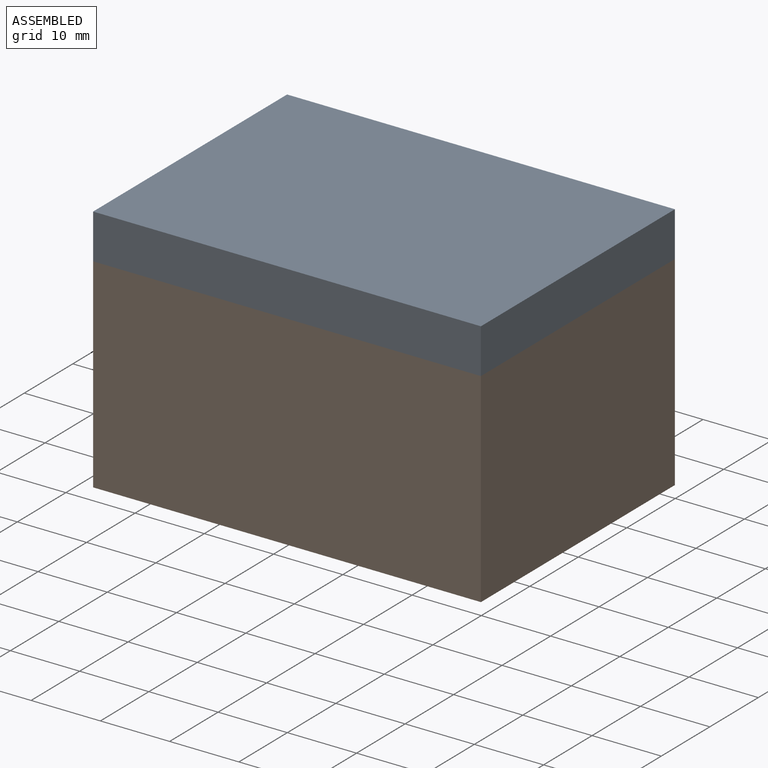
[diagram: assembled view]
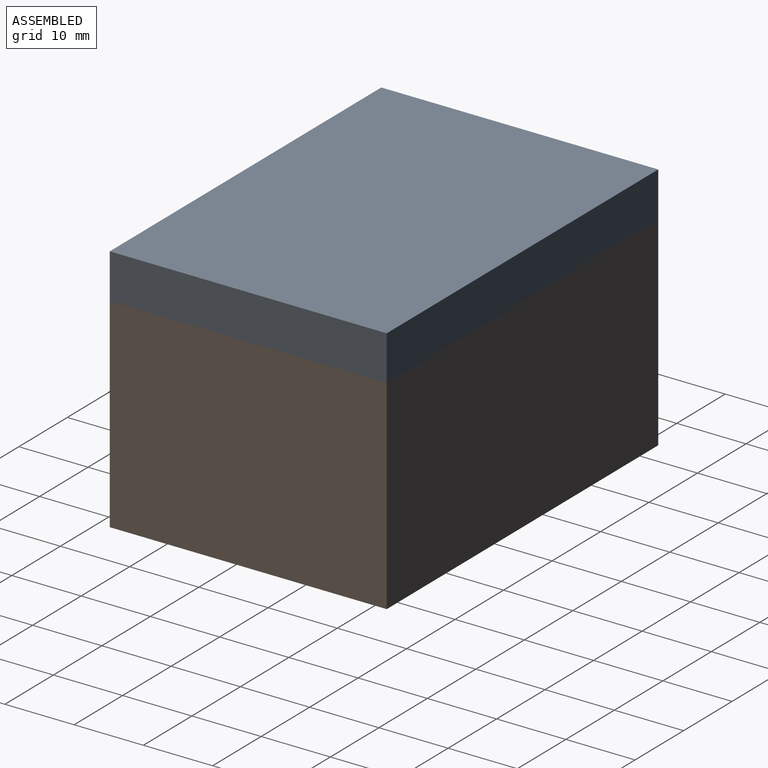
[diagram: assembled view, second angle]
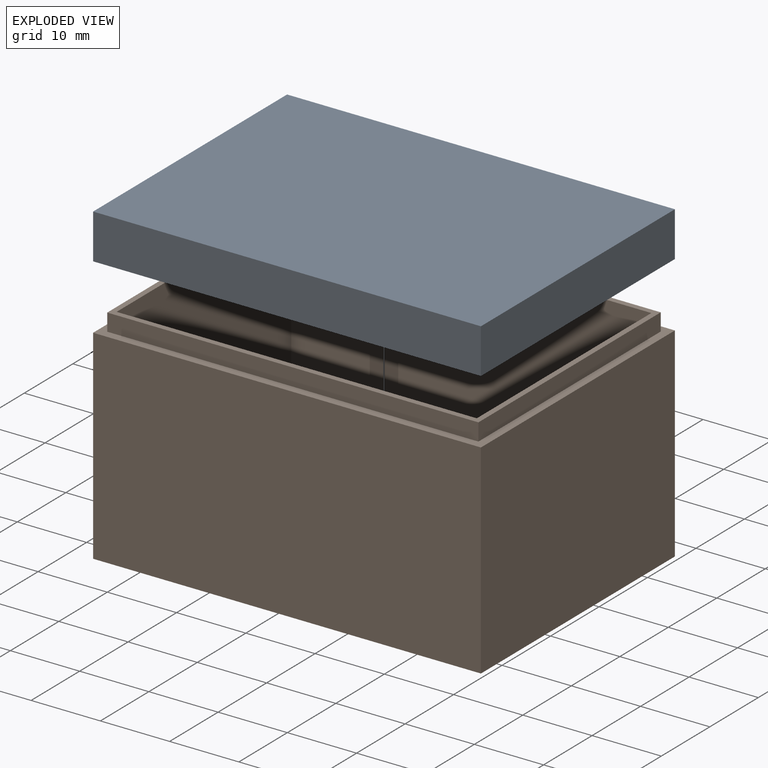
[diagram: exploded view]
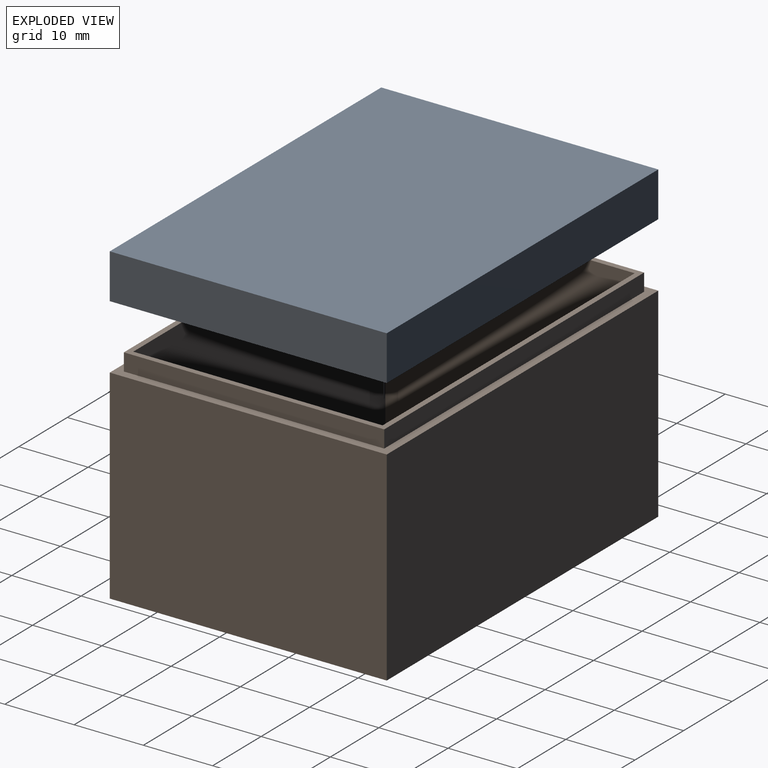
[diagram: exploded view, second angle]
ASSEMBLY  parts=2 mates=3
PART A: 11 faces, bbox 56x40x6.5 mm
  f0: plane 40x6.5mm, normal (-1,0,0), area 260mm2, adj f1,f3,f4,f9
  f1: plane 56x6.5mm, normal (0,-1,0), area 364mm2, adj f0,f2,f4,f9
  f2: plane 40x6.5mm, normal (1,0,0), area 260mm2, adj f1,f3,f4,f9
  f3: plane 56x6.5mm, normal (0,1,0), area 364mm2, adj f0,f2,f4,f9
  f4: plane 56x40mm, normal (0,0,1), area 2240mm2, adj f0,f1,f2,f3
  f5: plane 38.4x2.5mm, normal (1,0,0), area 96mm2, adj f6,f8,f9,f10
  f6: plane 54.4x2.5mm, normal (0,1,0), area 136mm2, adj f5,f7,f9,f10
  f7: plane 38.4x2.5mm, normal (-1,0,0), area 96mm2, adj f6,f8,f9,f10
  f8: plane 54.4x2.5mm, normal (0,-1,0), area 136mm2, adj f5,f7,f9,f10
  f9: plane 56x40mm, normal (0,0,-1), area 151mm2, adj f0,f1,f2,f3,f5,f6,f7,f8
  f10: plane 54.4x38.4mm, normal (0,0,-1), area 2089mm2, adj f5,f6,f7,f8
PART B: 16 faces, bbox 56x40x32 mm
  f0: plane 53.6x37.6mm, normal (0,0,1), area 143.4mm2, adj f1,f2,f3,f4,f6,f7,f8,f9
  f1: plane 52x30mm, normal (0,-1,0), area 1560mm2, adj f0,f2,f4,f5
  f2: plane 36x30mm, normal (1,0,0), area 1080mm2, adj f0,f1,f3,f5
  f3: plane 52x30mm, normal (0,1,0), area 1560mm2, adj f0,f2,f4,f5
  f4: plane 36x30mm, normal (-1,0,0), area 1080mm2, adj f0,f1,f3,f5
  f5: plane 52x36mm, normal (0,0,1), area 1872mm2, adj f1,f2,f3,f4
  f6: plane 53.6x2.5mm, normal (0,-1,0), area 134mm2, adj f0,f7,f9,f10
  f7: plane 37.6x2.5mm, normal (-1,0,0), area 94mm2, adj f0,f6,f8,f10
  f8: plane 53.6x2.5mm, normal (0,1,0), area 134mm2, adj f0,f7,f9,f10
  f9: plane 37.6x2.5mm, normal (1,0,0), area 94mm2, adj f0,f6,f8,f10
  f10: plane 56x40mm, normal (0,0,1), area 224.6mm2, adj f6,f7,f8,f9,f12,f13,f14,f15
  f11: plane 56x40mm, normal (0,0,-1), area 2240mm2, adj f12,f13,f14,f15
  f12: plane 56x29.5mm, normal (0,1,0), area 1652mm2, adj f10,f11,f13,f15
  f13: plane 40x29.5mm, normal (1,0,0), area 1180mm2, adj f10,f11,f12,f14
  f14: plane 56x29.5mm, normal (0,-1,0), area 1652mm2, adj f10,f11,f13,f15
  f15: plane 40x29.5mm, normal (-1,0,0), area 1180mm2, adj f10,f11,f12,f14
PLACE A t=(-5.29,4.64,-1.65)mm
PLACE B t=(-5.29,4.64,-33.65)mm
MATE planar A.f9 <-> B.f10  axis (0,0,-1) through (22.71,24.64,-4.15)mm
MATE planar A.f2 <-> B.f13  axis (1,0,0) through (50.71,24.64,-0.9)mm
MATE planar A.f1 <-> B.f14  axis (0,-1,0) through (22.71,4.64,-0.9)mm
